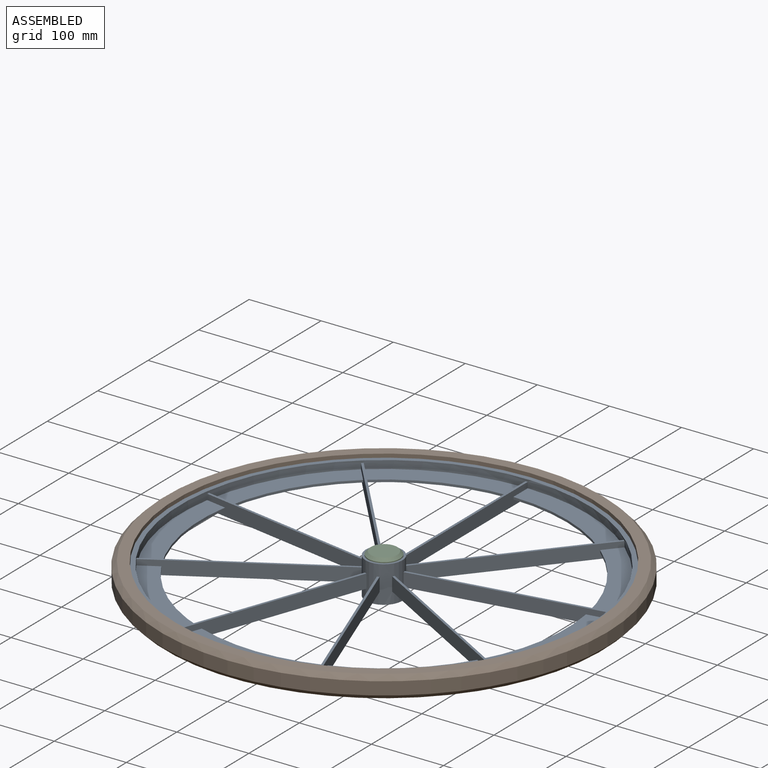
[diagram: assembled view]
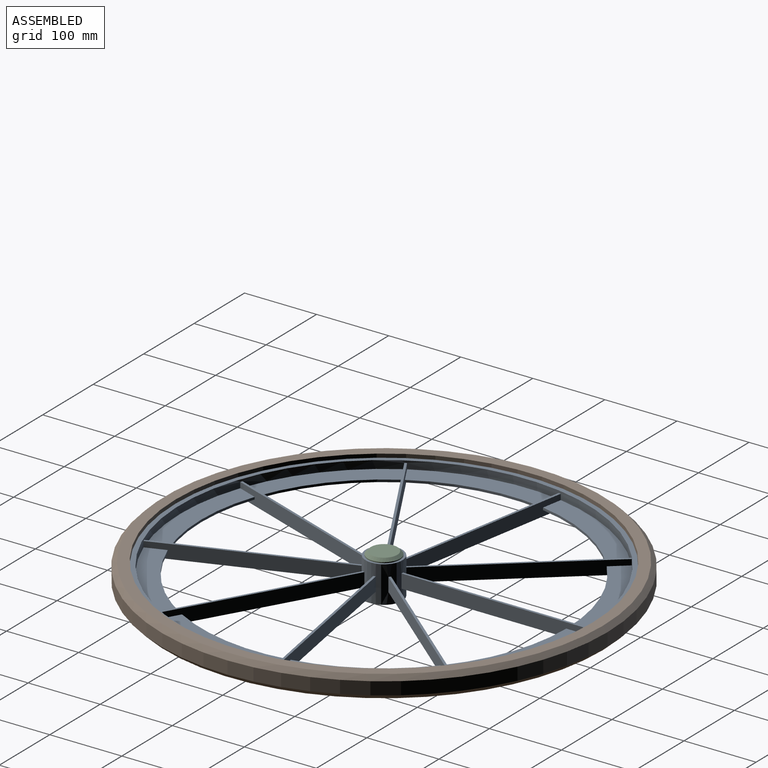
[diagram: assembled view, second angle]
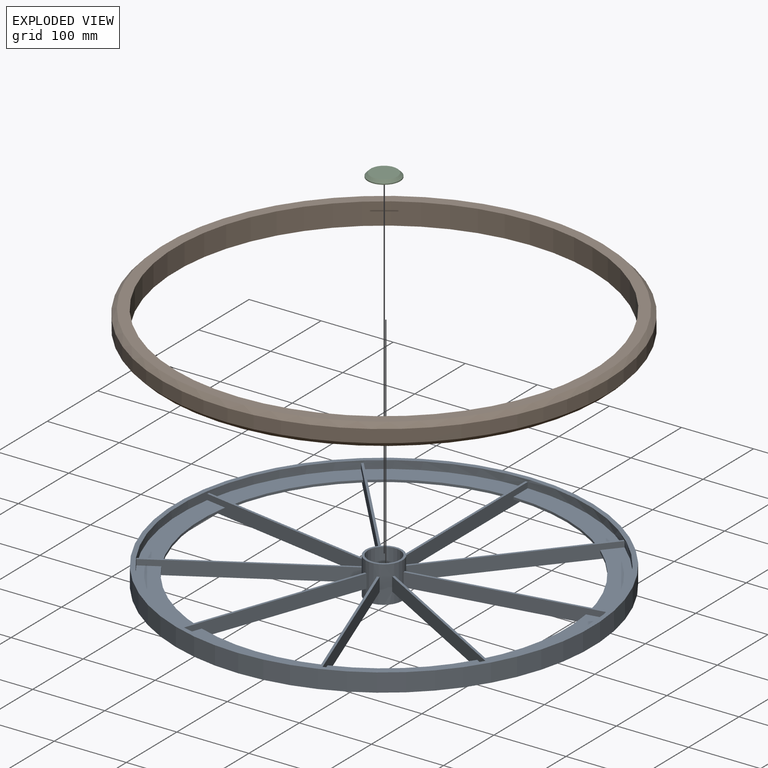
[diagram: exploded view]
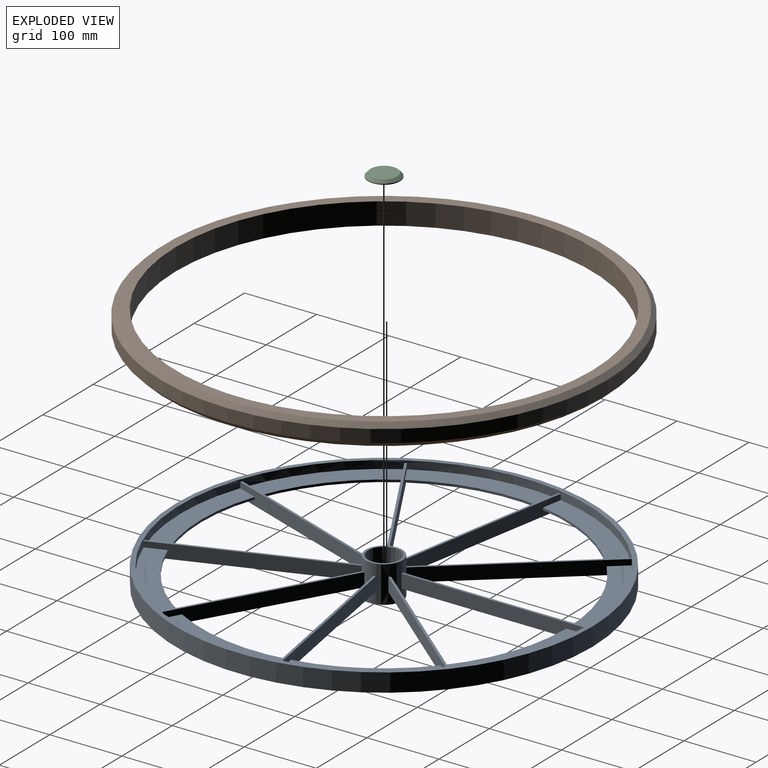
[diagram: exploded view, second angle]
ASSEMBLY  parts=3 mates=2
PART A: 73 faces, bbox 577.9x577.8x50.8 mm
  f0: cylinder r=22.23mm len=50.8mm, axis (0,0,1), area 7093.9mm2, adj f71,f72
  f1: cylinder r=25.4mm len=50.8mm, axis (0,0,1), area 7562.6mm2, adj f35,f36,f37,f38,f39,f40,f41,f42
  f2: cylinder r=254mm len=168.17mm, axis (0,0,-1), area 552.9mm2, adj f21,f22,f36,f40
  f3: cylinder r=288.93mm len=577.85mm, axis (0,0,-1), area 46029.7mm2, adj f6,f7,f8
  f4: cylinder r=282.58mm len=565.15mm, axis (0,0,-1), area 19503.1mm2, adj f8,f11,f14,f17,f20,f22,f25,f28
  f5: cylinder r=282.58mm len=565.15mm, axis (0,0,-1), area 19503.1mm2, adj f7,f10,f13,f16,f19,f21,f24,f27
  f6: plane 25.4x3.18mm, normal (0,1,0), area 80.6mm2, adj f3,f7,f8
  f7: plane 577.85x577.85mm, normal (0,0,1), area 11400.9mm2, adj f3,f5,f6
  f8: plane 577.85x577.85mm, normal (0,0,-1), area 11400.9mm2, adj f3,f4,f6
  f9: cylinder r=254mm len=147.88mm, axis (0,0,-1), area 552.9mm2, adj f10,f11,f56,f59
  f10: plane 169.77x113.52mm, normal (0,0,1), area 5261.4mm2, adj f5,f9,f56,f59
  f11: plane 169.77x113.52mm, normal (0,0,-1), area 5261.4mm2, adj f4,f9,f56,f59
  f12: cylinder r=254mm len=160.46mm, axis (0,0,-1), area 552.9mm2, adj f13,f14,f60,f64
  f13: plane 178.83x86.98mm, normal (0,0,1), area 5261.4mm2, adj f5,f12,f60,f64
  f14: plane 178.83x86.98mm, normal (0,0,-1), area 5261.4mm2, adj f4,f12,f60,f64
  f15: cylinder r=254mm len=160.46mm, axis (0,0,-1), area 552.9mm2, adj f16,f17,f63,f68
  f16: plane 178.83x86.98mm, normal (0,0,1), area 5261.4mm2, adj f5,f15,f63,f68
  f17: plane 178.83x86.98mm, normal (0,0,-1), area 5261.4mm2, adj f4,f15,f63,f68
  f18: cylinder r=254mm len=147.88mm, axis (0,0,-1), area 552.9mm2, adj f19,f20,f35,f67
  f19: plane 169.77x113.52mm, normal (0,0,1), area 5261.4mm2, adj f5,f18,f35,f67
  f20: plane 169.77x113.52mm, normal (0,0,-1), area 5261.4mm2, adj f4,f18,f35,f67
  f21: plane 187.42x61.82mm, normal (0,0,1), area 5261.4mm2, adj f2,f5,f36,f40
  f22: plane 187.42x61.82mm, normal (0,0,-1), area 5261.4mm2, adj f2,f4,f36,f40
  f23: cylinder r=254mm len=130.81mm, axis (0,0,-1), area 552.9mm2, adj f24,f25,f39,f44
  f24: plane 155.56x136.61mm, normal (0,0,1), area 5261.4mm2, adj f5,f23,f39,f44
  f25: plane 155.56x136.61mm, normal (0,0,-1), area 5261.4mm2, adj f4,f23,f39,f44
  f26: cylinder r=254mm len=170.76mm, axis (0,0,-1), area 552.9mm2, adj f27,f28,f43,f47
  f27: plane 190.31x43.35mm, normal (0,0,1), area 5261.4mm2, adj f5,f26,f43,f47
  f28: plane 190.31x43.35mm, normal (0,0,-1), area 5261.4mm2, adj f4,f26,f43,f47
  f29: cylinder r=254mm len=130.81mm, axis (0,0,-1), area 552.9mm2, adj f30,f31,f48,f51
  f30: plane 155.56x136.61mm, normal (0,0,1), area 5261.4mm2, adj f5,f29,f48,f51
  f31: plane 155.56x136.61mm, normal (0,0,-1), area 5261.4mm2, adj f4,f29,f48,f51
  f32: cylinder r=254mm len=168.17mm, axis (0,0,-1), area 552.9mm2, adj f33,f34,f52,f55
  f33: plane 187.42x61.82mm, normal (0,0,1), area 5261.4mm2, adj f5,f32,f52,f55
  f34: plane 187.42x61.82mm, normal (0,0,-1), area 5261.4mm2, adj f4,f32,f52,f55
  f35: plane 253.31x44.67mm, normal (0.17,0.98,0), area 4809.3mm2, adj f1,f4,f5,f18,f19,f20,f37,f38
  f36: plane 253.31x44.67mm, normal (-0.17,-0.98,0), area 4809.3mm2, adj f1,f2,f4,f5,f21,f22,f37,f38
  f37: plane 253.86x47.79mm, normal (0,0,1), area 816.6mm2, adj f1,f5,f35,f36
  f38: plane 253.86x47.79mm, normal (0,0,-1), area 816.6mm2, adj f1,f4,f35,f36
  f39: plane 222.76x128.61mm, normal (0.5,-0.87,0), area 4809.3mm2, adj f1,f4,f5,f23,f24,f25,f41,f42
  f40: plane 222.76x128.61mm, normal (-0.5,0.87,0), area 4809.3mm2, adj f1,f2,f4,f5,f21,f22,f41,f42
  f41: plane 224.35x131.36mm, normal (0,0,1), area 816.6mm2, adj f1,f5,f39,f40
  f42: plane 224.35x131.36mm, normal (0,0,-1), area 816.6mm2, adj f1,f4,f39,f40
  f43: plane 241.71x87.97mm, normal (0.94,-0.34,0), area 4809.3mm2, adj f1,f4,f5,f26,f27,f28,f45,f46
  f44: plane 241.71x87.97mm, normal (-0.94,0.34,0), area 4809.3mm2, adj f1,f4,f5,f23,f24,f25,f45,f46
  f45: plane 242.79x90.96mm, normal (0,0,1), area 816.6mm2, adj f1,f5,f43,f44
  f46: plane 242.79x90.96mm, normal (0,0,-1), area 816.6mm2, adj f1,f4,f43,f44
  f47: plane 241.71x87.97mm, normal (-0.94,-0.34,0), area 4809.3mm2, adj f1,f4,f5,f26,f27,f28,f49,f50
  f48: plane 241.71x87.97mm, normal (0.94,0.34,0), area 4809.3mm2, adj f1,f4,f5,f29,f30,f31,f49,f50
  f49: plane 242.79x90.96mm, normal (0,0,1), area 816.6mm2, adj f1,f5,f47,f48
  f50: plane 242.79x90.96mm, normal (0,0,-1), area 816.6mm2, adj f1,f4,f47,f48
  f51: plane 222.76x128.61mm, normal (-0.5,-0.87,0), area 4809.3mm2, adj f1,f4,f5,f29,f30,f31,f53,f54
  f52: plane 222.76x128.61mm, normal (0.5,0.87,0), area 4809.3mm2, adj f1,f4,f5,f32,f33,f34,f53,f54
  f53: plane 224.35x131.36mm, normal (0,0,1), area 816.6mm2, adj f1,f5,f51,f52
  f54: plane 224.35x131.36mm, normal (0,0,-1), area 816.6mm2, adj f1,f4,f51,f52
  f55: plane 253.31x44.67mm, normal (0.17,-0.98,0), area 4809.3mm2, adj f1,f4,f5,f32,f33,f34,f57,f58
  f56: plane 253.31x44.67mm, normal (-0.17,0.98,0), area 4809.3mm2, adj f1,f4,f5,f9,f10,f11,f57,f58
  f57: plane 253.86x47.79mm, normal (0,0,1), area 816.6mm2, adj f1,f5,f55,f56
  f58: plane 253.86x47.79mm, normal (0,0,-1), area 816.6mm2, adj f1,f4,f55,f56
  f59: plane 197.04x165.34mm, normal (0.77,-0.64,0), area 4809.3mm2, adj f1,f4,f5,f9,f10,f11,f61,f62
  f60: plane 197.04x165.34mm, normal (-0.77,0.64,0), area 4809.3mm2, adj f1,f4,f5,f12,f13,f14,f61,f62
  f61: plane 199.08x167.77mm, normal (0,0,1), area 816.6mm2, adj f1,f5,f59,f60
  f62: plane 199.08x167.77mm, normal (0,0,-1), area 816.6mm2, adj f1,f4,f59,f60
  f63: plane 257.22x19.05mm, normal (-1,0,0), area 4809.3mm2, adj f1,f4,f5,f15,f16,f17,f65,f66
  f64: plane 257.22x19.05mm, normal (1,0,0), area 4809.3mm2, adj f1,f4,f5,f12,f13,f14,f65,f66
  f65: plane 257.22x3.18mm, normal (0,0,1), area 816.6mm2, adj f1,f5,f63,f64
  f66: plane 257.22x3.18mm, normal (0,0,-1), area 816.6mm2, adj f1,f4,f63,f64
  f67: plane 197.04x165.34mm, normal (-0.77,-0.64,0), area 4809.3mm2, adj f1,f4,f5,f18,f19,f20,f69,f70
  f68: plane 197.04x165.34mm, normal (0.77,0.64,0), area 4809.3mm2, adj f1,f4,f5,f15,f16,f17,f69,f70
  f69: plane 199.08x167.77mm, normal (0,0,1), area 816.6mm2, adj f1,f5,f67,f68
  f70: plane 199.08x167.77mm, normal (0,0,-1), area 816.6mm2, adj f1,f4,f67,f68
  f71: plane 50.8x50.8mm, normal (0,0,-1), area 475mm2, adj f0,f1
  f72: plane 50.8x50.8mm, normal (0,0,1), area 475mm2, adj f0,f1
PART B: 6 faces, bbox 620.1x620.1x30.5 mm
  f0: plane 607.42x607.42mm, normal (0,0,1), area 27200.3mm2, adj f1,f2
  f1: cone r=310.06mm half-angle=45deg, axis (0,0,-1), area 17316mm2, adj f0,f3
  f2: cylinder r=289.11mm len=578.21mm, axis (0,0,-1), area 55340.9mm2, adj f0,f4
  f3: cylinder r=310.06mm len=620.12mm, axis (0,0,-1), area 34610.2mm2, adj f1,f5
  f4: plane 607.42x607.42mm, normal (0,0,-1), area 27200.3mm2, adj f2,f5
  f5: cone r=303.71mm half-angle=45deg, axis (0,0,1), area 17316mm2, adj f3,f4
PART C: 4 faces, bbox 44.5x44.5x5.1 mm
  f0: cone r=18.41mm half-angle=45deg, axis (0,0,-1), area 687.9mm2, adj f1,f2
  f1: cylinder r=22.23mm len=44.45mm, axis (0,0,-1), area 177.3mm2, adj f0,f3
  f2: plane 36.83x36.83mm, normal (0,0,1), area 1065.4mm2, adj f0
  f3: plane 44.45x44.45mm, normal (0,0,-1), area 1551.8mm2, adj f1
PLACE A t=(-601.48,12.71,436.76)mm
PLACE B t=(-601.48,12.71,439.28)mm
PLACE C t=(-601.48,12.71,436.76)mm
MATE fastened C.f0 <-> A.f0  axis (0,0,-1) through (-601.48,12.71,462.16)mm
MATE fastened A.f0 <-> B.f3  axis (0,0,-1) through (-601.48,12.71,424.06)mm
